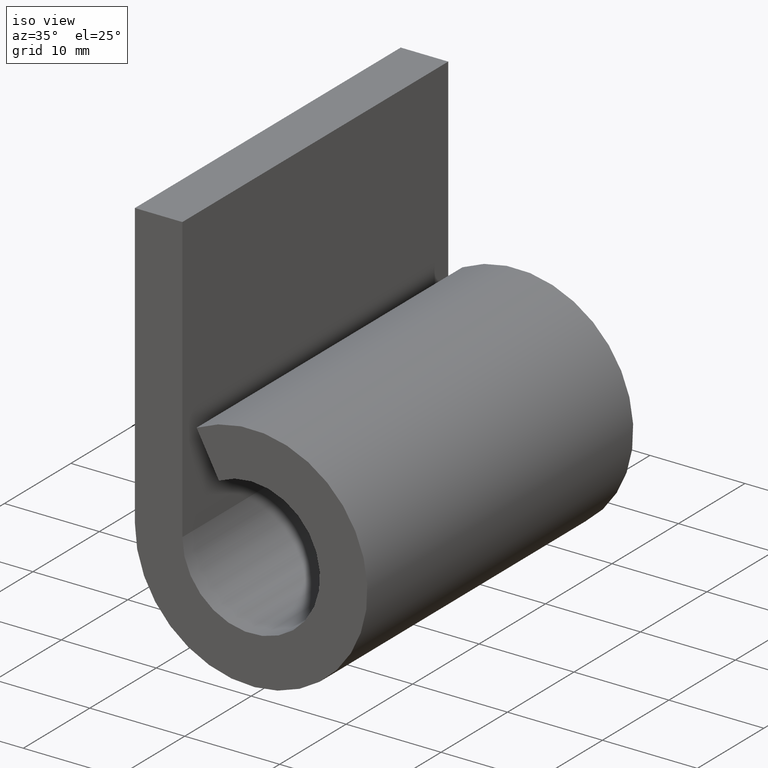
[diagram: clean part render]
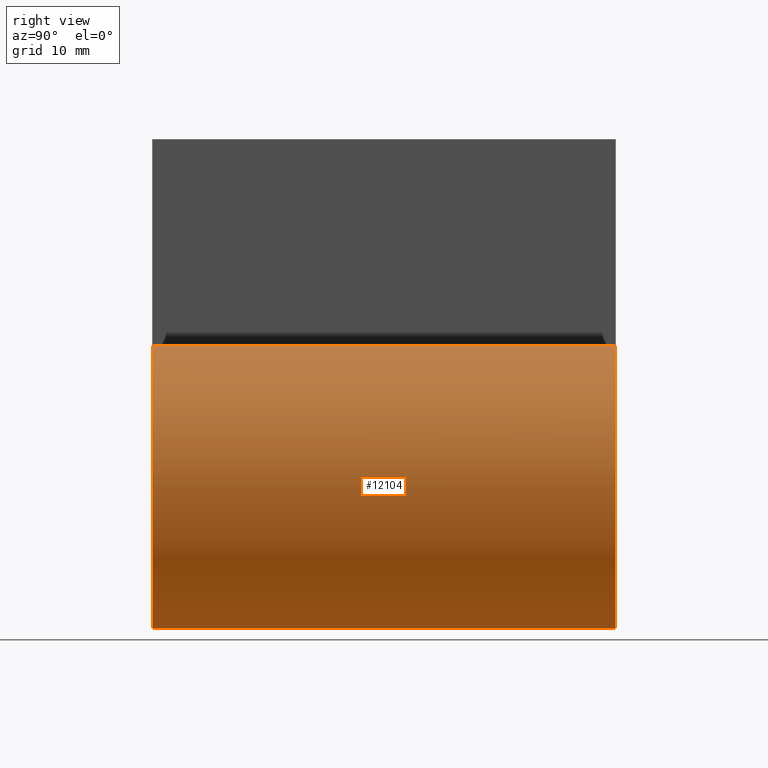
[diagram: tour spotlight — one face highlighted and labeled with its STEP entity id]
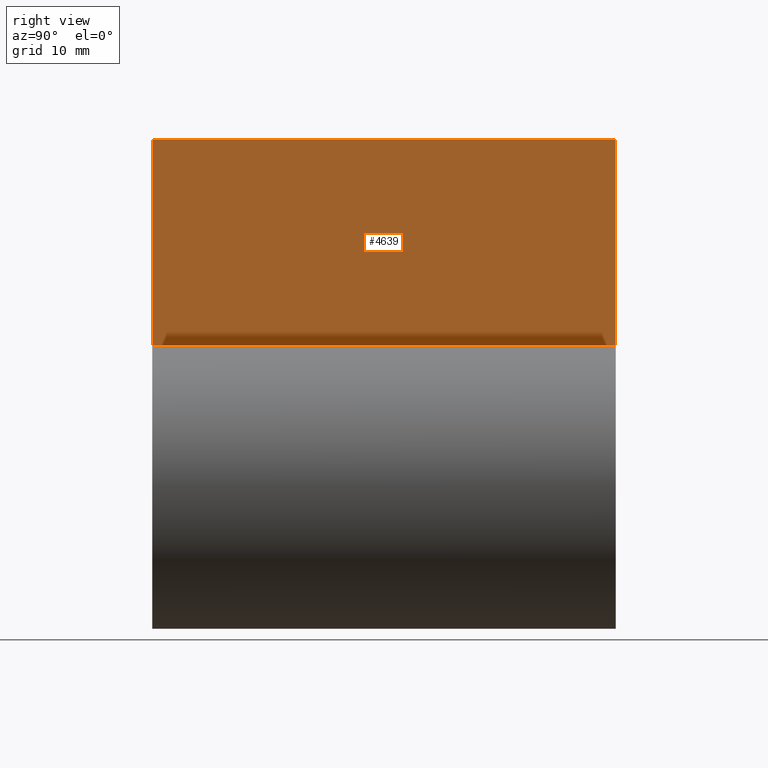
[diagram: tour spotlight — one face highlighted and labeled with its STEP entity id]
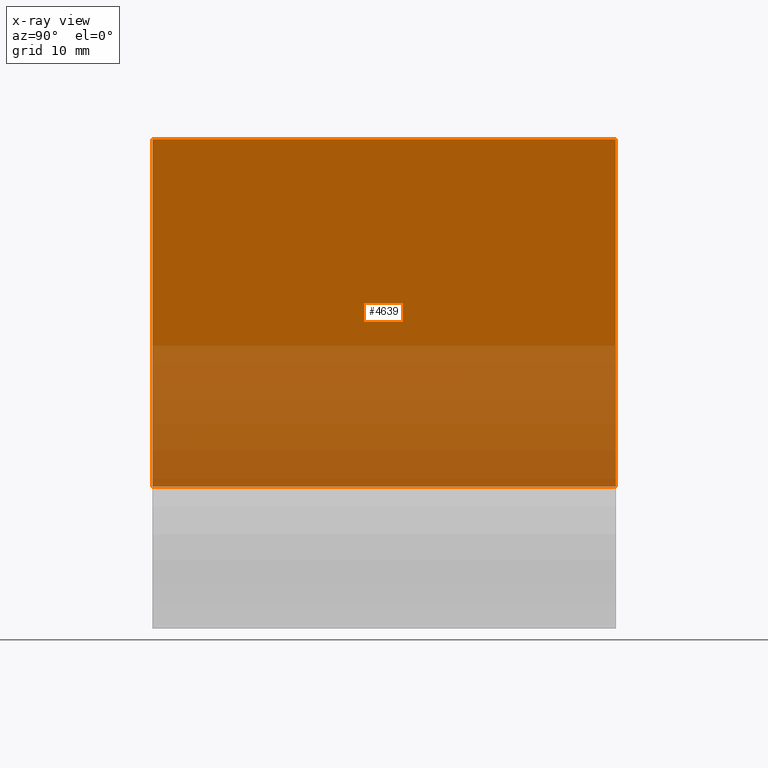
[diagram: x-ray of the same camera — body ghosted, this tour face saturated]
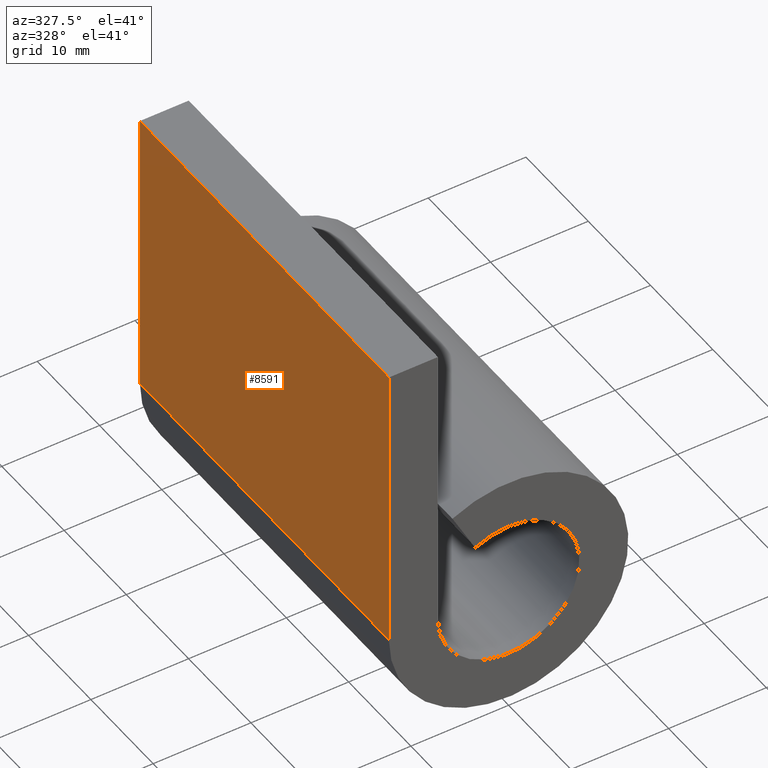
[diagram: tour spotlight — one face highlighted and labeled with its STEP entity id]
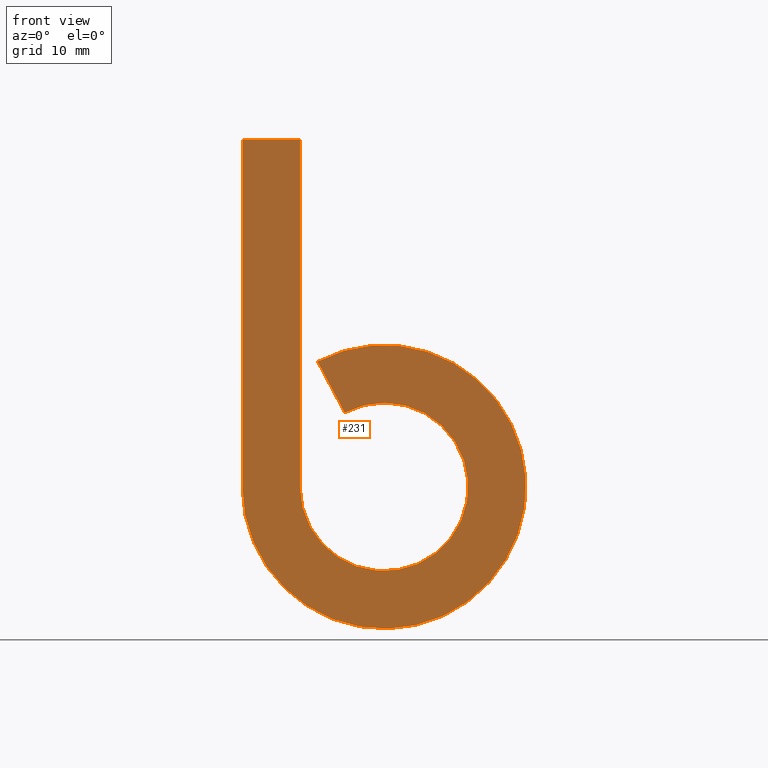
[diagram: tour spotlight — one face highlighted and labeled with its STEP entity id]
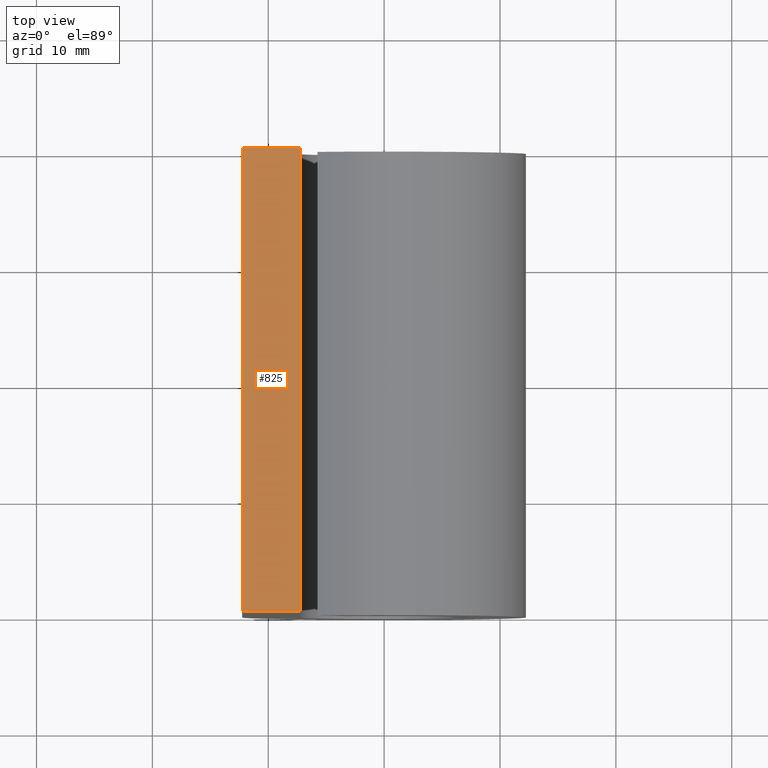
[diagram: tour spotlight — one face highlighted and labeled with its STEP entity id]
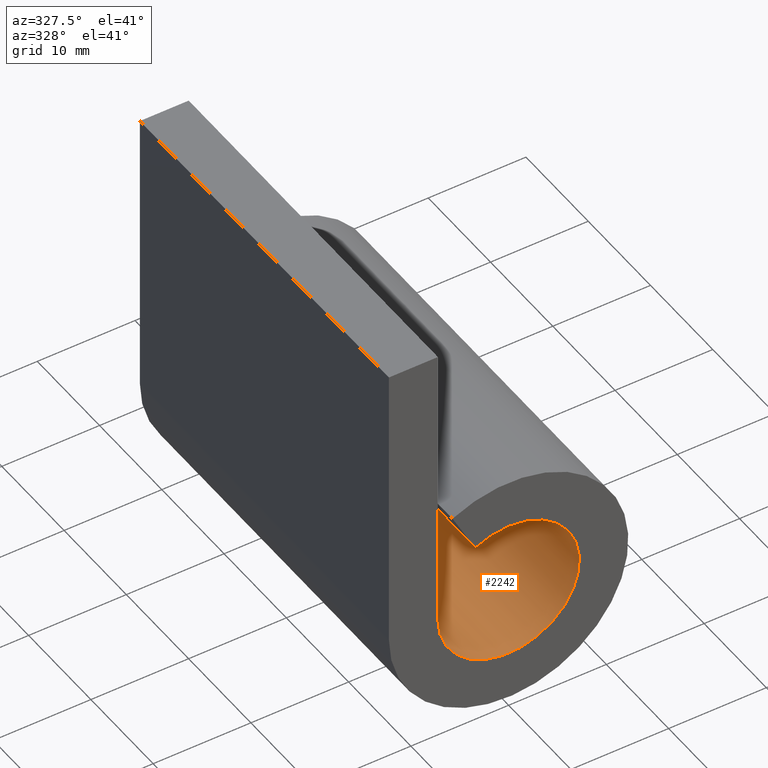
[diagram: tour spotlight — one face highlighted and labeled with its STEP entity id]
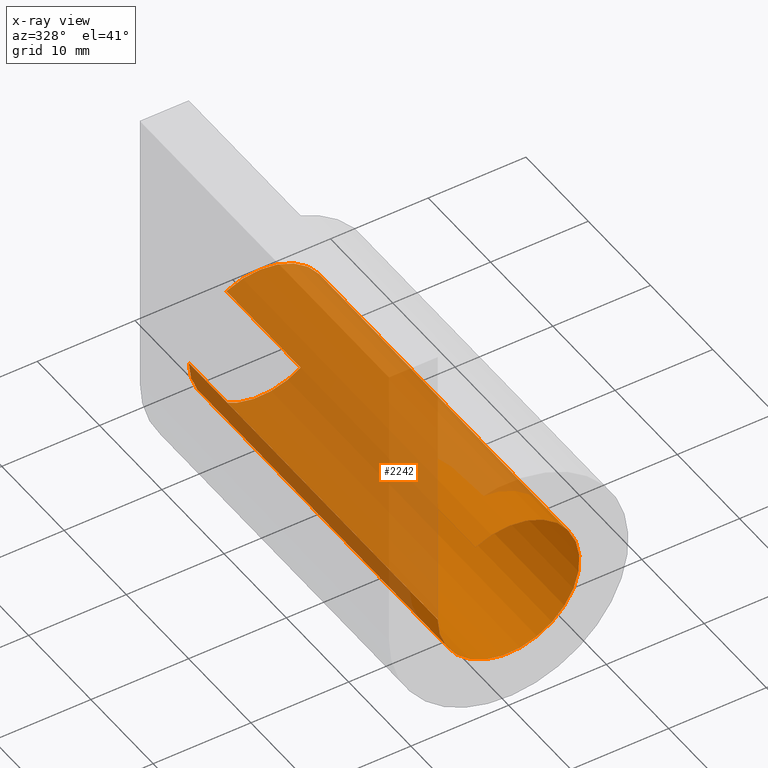
[diagram: x-ray of the same camera — body ghosted, this tour face saturated]
A machine part: a face-by-face anatomy tour. The part has 224 B-rep faces; the first image is the clean iso view, then the 6 largest visible faces are spotlighted one at a time (largest first), each with its STEP entity span.

Face 1 — right view, entity #12104. In plain terms, the highlighted cylindrical surface (partial cylindrical patch) has radius 12.25 mm, axis along (-0, -1, -0).
Definition (entity closure, byte-faithful):
#112 = FACE_OUTER_BOUND ( 'NONE', #10246, .T. ) ;
#849 = CARTESIAN_POINT ( 'NONE',  ( -12.24999999999999822, 20.00000000000000000, 2.250288493433262686E-15 ) ) ;
#1230 = DIRECTION ( 'NONE',  ( -0.000000000000000000, -1.000000000000000000, -0.000000000000000000 ) ) ;
#1529 = CARTESIAN_POINT ( 'NONE',  ( 8.673617379884035472E-15, -20.00000000000000000, 0.000000000000000000 ) ) ;
#1615 = DIRECTION ( 'NONE',  ( 0.000000000000000000, 0.000000000000000000, -1.000000000000000000 ) ) ;
#1683 = VECTOR ( 'NONE', #1230, 1000.000000000000000 ) ;
#2055 = CARTESIAN_POINT ( 'NONE',  ( -5.750000000000000888, 20.00000000000000000, 10.81665382639196871 ) ) ;
#2203 = CARTESIAN_POINT ( 'NONE',  ( -12.24999999999999822, 20.00000000000000000, 2.250288493433262686E-15 ) ) ;
#2627 = LINE ( 'NONE', #7241, #1683 ) ;
#2688 = CIRCLE ( 'NONE', #9768, 12.25000000000000711 ) ;
#3251 = EDGE_CURVE ( 'NONE', #12689, #11899, #2688, .T. ) ;
#3699 = ORIENTED_EDGE ( 'NONE', *, *, #8500, .F. ) ;
#3949 = DIRECTION ( 'NONE',  ( 0.000000000000000000, 1.000000000000000000, -0.000000000000000000 ) ) ;
#4511 = CYLINDRICAL_SURFACE ( 'NONE', #10065, 12.25000000000000711 ) ;
#5002 = CIRCLE ( 'NONE', #8547, 12.25000000000000711 ) ;
#5700 = CARTESIAN_POINT ( 'NONE',  ( 8.673617379884035472E-15, 20.00000000000000000, 0.000000000000000000 ) ) ;
#6585 = DIRECTION ( 'NONE',  ( 0.000000000000000000, 0.000000000000000000, -1.000000000000000000 ) ) ;
#6586 = ORIENTED_EDGE ( 'NONE', *, *, #3251, .T. ) ;
#6968 = DIRECTION ( 'NONE',  ( 0.000000000000000000, 0.000000000000000000, -1.000000000000000000 ) ) ;
#7241 = CARTESIAN_POINT ( 'NONE',  ( -5.750000000000000888, 20.00000000000000000, 10.81665382639196871 ) ) ;
#7653 = CARTESIAN_POINT ( 'NONE',  ( 8.673617379884035472E-15, 20.00000000000000000, 0.000000000000000000 ) ) ;
#7894 = DIRECTION ( 'NONE',  ( -0.000000000000000000, -1.000000000000000000, -0.000000000000000000 ) ) ;
#7962 = CARTESIAN_POINT ( 'NONE',  ( -12.24999999999999822, -20.00000000000000000, 2.250288493433262686E-15 ) ) ;
#8423 = VECTOR ( 'NONE', #7894, 1000.000000000000000 ) ;
#8500 = EDGE_CURVE ( 'NONE', #12383, #11899, #11563, .T. ) ;
#8547 = AXIS2_PLACEMENT_3D ( 'NONE', #7653, #9695, #1615 ) ;
#9528 = DIRECTION ( 'NONE',  ( -0.000000000000000000, -1.000000000000000000, -0.000000000000000000 ) ) ;
#9695 = DIRECTION ( 'NONE',  ( 0.000000000000000000, 1.000000000000000000, -0.000000000000000000 ) ) ;
#9768 = AXIS2_PLACEMENT_3D ( 'NONE', #1529, #3949, #6968 ) ;
#10050 = EDGE_CURVE ( 'NONE', #11219, #12383, #5002, .T. ) ;
#10065 = AXIS2_PLACEMENT_3D ( 'NONE', #5700, #9528, #6585 ) ;
#10246 = EDGE_LOOP ( 'NONE', ( #6586, #3699, #12229, #12254 ) ) ;
#10594 = CARTESIAN_POINT ( 'NONE',  ( -5.750000000000000888, -20.00000000000000000, 10.81665382639196871 ) ) ;
#11219 = VERTEX_POINT ( 'NONE', #2055 ) ;
#11563 = LINE ( 'NONE', #849, #8423 ) ;
#11899 = VERTEX_POINT ( 'NONE', #7962 ) ;
#12104 = ADVANCED_FACE ( 'NONE', ( #112 ), #4511, .T. ) ;
#12229 = ORIENTED_EDGE ( 'NONE', *, *, #10050, .F. ) ;
#12254 = ORIENTED_EDGE ( 'NONE', *, *, #12473, .T. ) ;
#12383 = VERTEX_POINT ( 'NONE', #2203 ) ;
#12473 = EDGE_CURVE ( 'NONE', #11219, #12689, #2627, .T. ) ;
#12689 = VERTEX_POINT ( 'NONE', #10594 ) ;

Face 2 — right view, entity #4639. An x-ray twin of the same camera follows (body ghosted, this face saturated) — the face is partly hidden behind the body. In plain terms, the highlighted planar face has unit normal (-1, 0, 0).
Definition (entity closure, byte-faithful):
#338 = ORIENTED_EDGE ( 'NONE', *, *, #1328, .T. ) ;
#353 = VERTEX_POINT ( 'NONE', #1194 ) ;
#447 = PLANE ( 'NONE',  #4796 ) ;
#956 = CARTESIAN_POINT ( 'NONE',  ( -7.250000000000000000, -20.00000000000000000, 0.000000000000000000 ) ) ;
#1187 = VERTEX_POINT ( 'NONE', #1626 ) ;
#1194 = CARTESIAN_POINT ( 'NONE',  ( -7.250000000000000000, 20.00000000000000000, 30.00000000000000000 ) ) ;
#1328 = EDGE_CURVE ( 'NONE', #353, #1187, #6162, .T. ) ;
#1626 = CARTESIAN_POINT ( 'NONE',  ( -7.250000000000000000, -20.00000000000000000, 30.00000000000000000 ) ) ;
#2245 = FACE_OUTER_BOUND ( 'NONE', #5813, .T. ) ;
#2280 = VECTOR ( 'NONE', #11999, 1000.000000000000000 ) ;
#2579 = LINE ( 'NONE', #7368, #9568 ) ;
#2605 = VERTEX_POINT ( 'NONE', #9033 ) ;
#2675 = LINE ( 'NONE', #12260, #3166 ) ;
#3166 = VECTOR ( 'NONE', #4285, 1000.000000000000000 ) ;
#3597 = DIRECTION ( 'NONE',  ( -0.000000000000000000, -1.000000000000000000, -0.000000000000000000 ) ) ;
#3777 = VECTOR ( 'NONE', #3597, 1000.000000000000000 ) ;
#4132 = EDGE_CURVE ( 'NONE', #2605, #9826, #11108, .T. ) ;
#4281 = ORIENTED_EDGE ( 'NONE', *, *, #5256, .F. ) ;
#4285 = DIRECTION ( 'NONE',  ( 0.000000000000000000, 0.000000000000000000, -1.000000000000000000 ) ) ;
#4484 = CARTESIAN_POINT ( 'NONE',  ( -7.250000000000000000, 20.00000000000000000, 30.00000000000000000 ) ) ;
#4639 = ADVANCED_FACE ( 'NONE', ( #2245 ), #447, .F. ) ;
#4796 = AXIS2_PLACEMENT_3D ( 'NONE', #4484, #12295, #7435 ) ;
#5256 = EDGE_CURVE ( 'NONE', #353, #2605, #2675, .T. ) ;
#5468 = ORIENTED_EDGE ( 'NONE', *, *, #8156, .T. ) ;
#5665 = CARTESIAN_POINT ( 'NONE',  ( -7.250000000000000000, 20.00000000000000000, 0.000000000000000000 ) ) ;
#5813 = EDGE_LOOP ( 'NONE', ( #5468, #7367, #4281, #338 ) ) ;
#6162 = LINE ( 'NONE', #10881, #2280 ) ;
#7367 = ORIENTED_EDGE ( 'NONE', *, *, #4132, .F. ) ;
#7368 = CARTESIAN_POINT ( 'NONE',  ( -7.250000000000000000, -20.00000000000000000, 30.00000000000000000 ) ) ;
#7435 = DIRECTION ( 'NONE',  ( 0.000000000000000000, 0.000000000000000000, 1.000000000000000000 ) ) ;
#8156 = EDGE_CURVE ( 'NONE', #1187, #9826, #2579, .T. ) ;
#8483 = DIRECTION ( 'NONE',  ( 0.000000000000000000, 0.000000000000000000, -1.000000000000000000 ) ) ;
#9033 = CARTESIAN_POINT ( 'NONE',  ( -7.250000000000000000, 20.00000000000000000, 0.000000000000000000 ) ) ;
#9568 = VECTOR ( 'NONE', #8483, 1000.000000000000000 ) ;
#9826 = VERTEX_POINT ( 'NONE', #956 ) ;
#10881 = CARTESIAN_POINT ( 'NONE',  ( -7.250000000000000000, 20.00000000000000000, 30.00000000000000000 ) ) ;
#11108 = LINE ( 'NONE', #5665, #3777 ) ;
#11999 = DIRECTION ( 'NONE',  ( -0.000000000000000000, -1.000000000000000000, -0.000000000000000000 ) ) ;
#12260 = CARTESIAN_POINT ( 'NONE',  ( -7.250000000000000000, 20.00000000000000000, 30.00000000000000000 ) ) ;
#12295 = DIRECTION ( 'NONE',  ( -1.000000000000000000, 0.000000000000000000, 0.000000000000000000 ) ) ;

Face 3 — auxiliary view, entity #8591. In plain terms, the highlighted planar face has unit normal (1, -0, 0).
Definition (entity closure, byte-faithful):
#321 = LINE ( 'NONE', #10991, #12506 ) ;
#357 = VERTEX_POINT ( 'NONE', #1282 ) ;
#849 = CARTESIAN_POINT ( 'NONE',  ( -12.24999999999999822, 20.00000000000000000, 2.250288493433262686E-15 ) ) ;
#1282 = CARTESIAN_POINT ( 'NONE',  ( -12.25000000000000000, -20.00000000000000000, 30.00000000000000000 ) ) ;
#1895 = AXIS2_PLACEMENT_3D ( 'NONE', #8339, #3371, #3289 ) ;
#2142 = EDGE_CURVE ( 'NONE', #11899, #357, #8924, .T. ) ;
#2203 = CARTESIAN_POINT ( 'NONE',  ( -12.24999999999999822, 20.00000000000000000, 2.250288493433262686E-15 ) ) ;
#2344 = ORIENTED_EDGE ( 'NONE', *, *, #12009, .F. ) ;
#3025 = ORIENTED_EDGE ( 'NONE', *, *, #6699, .F. ) ;
#3289 = DIRECTION ( 'NONE',  ( 0.000000000000000000, 0.000000000000000000, -1.000000000000000000 ) ) ;
#3371 = DIRECTION ( 'NONE',  ( 1.000000000000000000, -0.000000000000000000, 0.000000000000000000 ) ) ;
#3441 = ORIENTED_EDGE ( 'NONE', *, *, #8500, .T. ) ;
#4469 = CARTESIAN_POINT ( 'NONE',  ( -12.25000000000000000, 20.00000000000000000, 30.00000000000000000 ) ) ;
#4740 = VECTOR ( 'NONE', #12876, 1000.000000000000000 ) ;
#5831 = CARTESIAN_POINT ( 'NONE',  ( -12.25000000000000000, -20.00000000000000000, 30.00000000000000000 ) ) ;
#6197 = PLANE ( 'NONE',  #1895 ) ;
#6699 = EDGE_CURVE ( 'NONE', #8782, #357, #321, .T. ) ;
#7155 = VECTOR ( 'NONE', #11390, 1000.000000000000000 ) ;
#7191 = EDGE_LOOP ( 'NONE', ( #11572, #3025, #2344, #3441 ) ) ;
#7496 = FACE_OUTER_BOUND ( 'NONE', #7191, .T. ) ;
#7894 = DIRECTION ( 'NONE',  ( -0.000000000000000000, -1.000000000000000000, -0.000000000000000000 ) ) ;
#7962 = CARTESIAN_POINT ( 'NONE',  ( -12.24999999999999822, -20.00000000000000000, 2.250288493433262686E-15 ) ) ;
#8339 = CARTESIAN_POINT ( 'NONE',  ( -12.25000000000000000, 20.00000000000000000, 30.00000000000000000 ) ) ;
#8423 = VECTOR ( 'NONE', #7894, 1000.000000000000000 ) ;
#8500 = EDGE_CURVE ( 'NONE', #12383, #11899, #11563, .T. ) ;
#8591 = ADVANCED_FACE ( 'NONE', ( #7496 ), #6197, .F. ) ;
#8782 = VERTEX_POINT ( 'NONE', #11584 ) ;
#8924 = LINE ( 'NONE', #5831, #4740 ) ;
#9790 = DIRECTION ( 'NONE',  ( -0.000000000000000000, -1.000000000000000000, -0.000000000000000000 ) ) ;
#10991 = CARTESIAN_POINT ( 'NONE',  ( -12.25000000000000000, 20.00000000000000000, 30.00000000000000000 ) ) ;
#11377 = LINE ( 'NONE', #4469, #7155 ) ;
#11390 = DIRECTION ( 'NONE',  ( -0.000000000000000000, -0.000000000000000000, 1.000000000000000000 ) ) ;
#11563 = LINE ( 'NONE', #849, #8423 ) ;
#11572 = ORIENTED_EDGE ( 'NONE', *, *, #2142, .T. ) ;
#11584 = CARTESIAN_POINT ( 'NONE',  ( -12.25000000000000000, 20.00000000000000000, 30.00000000000000000 ) ) ;
#11899 = VERTEX_POINT ( 'NONE', #7962 ) ;
#12009 = EDGE_CURVE ( 'NONE', #12383, #8782, #11377, .T. ) ;
#12383 = VERTEX_POINT ( 'NONE', #2203 ) ;
#12506 = VECTOR ( 'NONE', #9790, 1000.000000000000000 ) ;
#12876 = DIRECTION ( 'NONE',  ( -0.000000000000000000, -0.000000000000000000, 1.000000000000000000 ) ) ;

Face 4 — front view, entity #231. In plain terms, the highlighted planar face has unit normal (0, -1, 0).
Definition (entity closure, byte-faithful):
#231 = ADVANCED_FACE ( 'NONE', ( #12318 ), #11855, .T. ) ;
#357 = VERTEX_POINT ( 'NONE', #1282 ) ;
#494 = ORIENTED_EDGE ( 'NONE', *, *, #9372, .F. ) ;
#956 = CARTESIAN_POINT ( 'NONE',  ( -7.250000000000000000, -20.00000000000000000, 0.000000000000000000 ) ) ;
#1187 = VERTEX_POINT ( 'NONE', #1626 ) ;
#1282 = CARTESIAN_POINT ( 'NONE',  ( -12.25000000000000000, -20.00000000000000000, 30.00000000000000000 ) ) ;
#1529 = CARTESIAN_POINT ( 'NONE',  ( 8.673617379884035472E-15, -20.00000000000000000, 0.000000000000000000 ) ) ;
#1626 = CARTESIAN_POINT ( 'NONE',  ( -7.250000000000000000, -20.00000000000000000, 30.00000000000000000 ) ) ;
#1931 = DIRECTION ( 'NONE',  ( -0.4693877551020408379, -0.000000000000000000, 0.8829921490932218786 ) ) ;
#2034 = AXIS2_PLACEMENT_3D ( 'NONE', #6930, #4975, #5868 ) ;
#2043 = VECTOR ( 'NONE', #6777, 1000.000000000000000 ) ;
#2142 = EDGE_CURVE ( 'NONE', #11899, #357, #8924, .T. ) ;
#2579 = LINE ( 'NONE', #7368, #9568 ) ;
#2688 = CIRCLE ( 'NONE', #9768, 12.25000000000000711 ) ;
#3251 = EDGE_CURVE ( 'NONE', #12689, #11899, #2688, .T. ) ;
#3739 = EDGE_CURVE ( 'NONE', #9826, #12302, #5198, .T. ) ;
#3949 = DIRECTION ( 'NONE',  ( 0.000000000000000000, 1.000000000000000000, -0.000000000000000000 ) ) ;
#4630 = AXIS2_PLACEMENT_3D ( 'NONE', #11249, #7281, #6332 ) ;
#4740 = VECTOR ( 'NONE', #12876, 1000.000000000000000 ) ;
#4975 = DIRECTION ( 'NONE',  ( 0.000000000000000000, -1.000000000000000000, 0.000000000000000000 ) ) ;
#5198 = CIRCLE ( 'NONE', #4630, 7.250000000000007105 ) ;
#5723 = CARTESIAN_POINT ( 'NONE',  ( -12.25000000000000000, -20.00000000000000000, 30.00000000000000000 ) ) ;
#5831 = CARTESIAN_POINT ( 'NONE',  ( -12.25000000000000000, -20.00000000000000000, 30.00000000000000000 ) ) ;
#5868 = DIRECTION ( 'NONE',  ( 0.000000000000000000, -0.000000000000000000, -1.000000000000000000 ) ) ;
#6332 = DIRECTION ( 'NONE',  ( 0.000000000000000000, 0.000000000000000000, -1.000000000000000000 ) ) ;
#6449 = ORIENTED_EDGE ( 'NONE', *, *, #2142, .F. ) ;
#6777 = DIRECTION ( 'NONE',  ( 1.000000000000000000, 0.000000000000000000, 0.000000000000000000 ) ) ;
#6930 = CARTESIAN_POINT ( 'NONE',  ( 8.673617379884035472E-15, -20.00000000000000000, 0.000000000000000000 ) ) ;
#6968 = DIRECTION ( 'NONE',  ( 0.000000000000000000, 0.000000000000000000, -1.000000000000000000 ) ) ;
#7056 = CARTESIAN_POINT ( 'NONE',  ( -3.403061224489794423, -20.00000000000000000, 6.401693080925862311 ) ) ;
#7281 = DIRECTION ( 'NONE',  ( -0.000000000000000000, -1.000000000000000000, 0.000000000000000000 ) ) ;
#7368 = CARTESIAN_POINT ( 'NONE',  ( -7.250000000000000000, -20.00000000000000000, 30.00000000000000000 ) ) ;
#7481 = LINE ( 'NONE', #5723, #2043 ) ;
#7759 = EDGE_LOOP ( 'NONE', ( #494, #6449, #7796, #12531, #11566, #8492 ) ) ;
#7796 = ORIENTED_EDGE ( 'NONE', *, *, #3251, .F. ) ;
#7962 = CARTESIAN_POINT ( 'NONE',  ( -12.24999999999999822, -20.00000000000000000, 2.250288493433262686E-15 ) ) ;
#8029 = EDGE_CURVE ( 'NONE', #12302, #12689, #8141, .T. ) ;
#8141 = LINE ( 'NONE', #12877, #9836 ) ;
#8156 = EDGE_CURVE ( 'NONE', #1187, #9826, #2579, .T. ) ;
#8483 = DIRECTION ( 'NONE',  ( 0.000000000000000000, 0.000000000000000000, -1.000000000000000000 ) ) ;
#8492 = ORIENTED_EDGE ( 'NONE', *, *, #8156, .F. ) ;
#8924 = LINE ( 'NONE', #5831, #4740 ) ;
#9372 = EDGE_CURVE ( 'NONE', #357, #1187, #7481, .T. ) ;
#9568 = VECTOR ( 'NONE', #8483, 1000.000000000000000 ) ;
#9768 = AXIS2_PLACEMENT_3D ( 'NONE', #1529, #3949, #6968 ) ;
#9826 = VERTEX_POINT ( 'NONE', #956 ) ;
#9836 = VECTOR ( 'NONE', #1931, 1000.000000000000114 ) ;
#10594 = CARTESIAN_POINT ( 'NONE',  ( -5.750000000000000888, -20.00000000000000000, 10.81665382639196871 ) ) ;
#11249 = CARTESIAN_POINT ( 'NONE',  ( 8.673617379884035472E-15, -20.00000000000000000, 0.000000000000000000 ) ) ;
#11566 = ORIENTED_EDGE ( 'NONE', *, *, #3739, .F. ) ;
#11855 = PLANE ( 'NONE',  #2034 ) ;
#11899 = VERTEX_POINT ( 'NONE', #7962 ) ;
#12302 = VERTEX_POINT ( 'NONE', #7056 ) ;
#12318 = FACE_OUTER_BOUND ( 'NONE', #7759, .T. ) ;
#12531 = ORIENTED_EDGE ( 'NONE', *, *, #8029, .F. ) ;
#12689 = VERTEX_POINT ( 'NONE', #10594 ) ;
#12876 = DIRECTION ( 'NONE',  ( -0.000000000000000000, -0.000000000000000000, 1.000000000000000000 ) ) ;
#12877 = CARTESIAN_POINT ( 'NONE',  ( -5.750000000000000888, -20.00000000000000000, 10.81665382639196871 ) ) ;

Face 5 — top view, entity #825. In plain terms, the highlighted planar face has unit normal (0, 0, -1).
Definition (entity closure, byte-faithful):
#183 = ORIENTED_EDGE ( 'NONE', *, *, #6699, .T. ) ;
#321 = LINE ( 'NONE', #10991, #12506 ) ;
#353 = VERTEX_POINT ( 'NONE', #1194 ) ;
#357 = VERTEX_POINT ( 'NONE', #1282 ) ;
#825 = ADVANCED_FACE ( 'NONE', ( #7405 ), #7395, .F. ) ;
#1187 = VERTEX_POINT ( 'NONE', #1626 ) ;
#1194 = CARTESIAN_POINT ( 'NONE',  ( -7.250000000000000000, 20.00000000000000000, 30.00000000000000000 ) ) ;
#1279 = LINE ( 'NONE', #4788, #1578 ) ;
#1282 = CARTESIAN_POINT ( 'NONE',  ( -12.25000000000000000, -20.00000000000000000, 30.00000000000000000 ) ) ;
#1328 = EDGE_CURVE ( 'NONE', #353, #1187, #6162, .T. ) ;
#1578 = VECTOR ( 'NONE', #1955, 1000.000000000000000 ) ;
#1626 = CARTESIAN_POINT ( 'NONE',  ( -7.250000000000000000, -20.00000000000000000, 30.00000000000000000 ) ) ;
#1955 = DIRECTION ( 'NONE',  ( 1.000000000000000000, 0.000000000000000000, 0.000000000000000000 ) ) ;
#2043 = VECTOR ( 'NONE', #6777, 1000.000000000000000 ) ;
#2280 = VECTOR ( 'NONE', #11999, 1000.000000000000000 ) ;
#3231 = AXIS2_PLACEMENT_3D ( 'NONE', #9384, #8461, #3444 ) ;
#3444 = DIRECTION ( 'NONE',  ( -1.000000000000000000, 0.000000000000000000, -0.000000000000000000 ) ) ;
#4788 = CARTESIAN_POINT ( 'NONE',  ( -12.25000000000000000, 20.00000000000000000, 30.00000000000000000 ) ) ;
#5723 = CARTESIAN_POINT ( 'NONE',  ( -12.25000000000000000, -20.00000000000000000, 30.00000000000000000 ) ) ;
#6162 = LINE ( 'NONE', #10881, #2280 ) ;
#6699 = EDGE_CURVE ( 'NONE', #8782, #357, #321, .T. ) ;
#6756 = EDGE_LOOP ( 'NONE', ( #9517, #9737, #7576, #183 ) ) ;
#6777 = DIRECTION ( 'NONE',  ( 1.000000000000000000, 0.000000000000000000, 0.000000000000000000 ) ) ;
#7395 = PLANE ( 'NONE',  #3231 ) ;
#7405 = FACE_OUTER_BOUND ( 'NONE', #6756, .T. ) ;
#7481 = LINE ( 'NONE', #5723, #2043 ) ;
#7576 = ORIENTED_EDGE ( 'NONE', *, *, #8366, .F. ) ;
#8366 = EDGE_CURVE ( 'NONE', #8782, #353, #1279, .T. ) ;
#8461 = DIRECTION ( 'NONE',  ( 0.000000000000000000, 0.000000000000000000, -1.000000000000000000 ) ) ;
#8782 = VERTEX_POINT ( 'NONE', #11584 ) ;
#9372 = EDGE_CURVE ( 'NONE', #357, #1187, #7481, .T. ) ;
#9384 = CARTESIAN_POINT ( 'NONE',  ( -12.25000000000000000, 20.00000000000000000, 30.00000000000000000 ) ) ;
#9517 = ORIENTED_EDGE ( 'NONE', *, *, #9372, .T. ) ;
#9737 = ORIENTED_EDGE ( 'NONE', *, *, #1328, .F. ) ;
#9790 = DIRECTION ( 'NONE',  ( -0.000000000000000000, -1.000000000000000000, -0.000000000000000000 ) ) ;
#10881 = CARTESIAN_POINT ( 'NONE',  ( -7.250000000000000000, 20.00000000000000000, 30.00000000000000000 ) ) ;
#10991 = CARTESIAN_POINT ( 'NONE',  ( -12.25000000000000000, 20.00000000000000000, 30.00000000000000000 ) ) ;
#11584 = CARTESIAN_POINT ( 'NONE',  ( -12.25000000000000000, 20.00000000000000000, 30.00000000000000000 ) ) ;
#11999 = DIRECTION ( 'NONE',  ( -0.000000000000000000, -1.000000000000000000, -0.000000000000000000 ) ) ;
#12506 = VECTOR ( 'NONE', #9790, 1000.000000000000000 ) ;

Face 6 — auxiliary view, entity #2242. An x-ray twin of the same camera follows (body ghosted, this face saturated) — the face is partly hidden behind the body. In plain terms, the highlighted cylindrical surface (partial cylindrical patch) has radius 7.25 mm, axis along (-0, -1, -0).
Definition (entity closure, byte-faithful):
#551 = DIRECTION ( 'NONE',  ( 0.000000000000000000, 0.000000000000000000, -1.000000000000000000 ) ) ;
#956 = CARTESIAN_POINT ( 'NONE',  ( -7.250000000000000000, -20.00000000000000000, 0.000000000000000000 ) ) ;
#1952 = VERTEX_POINT ( 'NONE', #9507 ) ;
#2236 = AXIS2_PLACEMENT_3D ( 'NONE', #8094, #10144, #2262 ) ;
#2242 = ADVANCED_FACE ( 'NONE', ( #3047 ), #10485, .F. ) ;
#2262 = DIRECTION ( 'NONE',  ( 0.000000000000000000, 0.000000000000000000, -1.000000000000000000 ) ) ;
#2500 = CARTESIAN_POINT ( 'NONE',  ( 8.673617379884035472E-15, 20.00000000000000000, 0.000000000000000000 ) ) ;
#2548 = EDGE_LOOP ( 'NONE', ( #11802, #8063, #7775, #12777 ) ) ;
#2605 = VERTEX_POINT ( 'NONE', #9033 ) ;
#3047 = FACE_OUTER_BOUND ( 'NONE', #2548, .T. ) ;
#3597 = DIRECTION ( 'NONE',  ( -0.000000000000000000, -1.000000000000000000, -0.000000000000000000 ) ) ;
#3739 = EDGE_CURVE ( 'NONE', #9826, #12302, #5198, .T. ) ;
#3777 = VECTOR ( 'NONE', #3597, 1000.000000000000000 ) ;
#4132 = EDGE_CURVE ( 'NONE', #2605, #9826, #11108, .T. ) ;
#4630 = AXIS2_PLACEMENT_3D ( 'NONE', #11249, #7281, #6332 ) ;
#4663 = CARTESIAN_POINT ( 'NONE',  ( -3.403061224489794423, 20.00000000000000000, 6.401693080925862311 ) ) ;
#4969 = AXIS2_PLACEMENT_3D ( 'NONE', #2500, #12565, #551 ) ;
#5036 = EDGE_CURVE ( 'NONE', #2605, #1952, #10448, .T. ) ;
#5198 = CIRCLE ( 'NONE', #4630, 7.250000000000007105 ) ;
#5665 = CARTESIAN_POINT ( 'NONE',  ( -7.250000000000000000, 20.00000000000000000, 0.000000000000000000 ) ) ;
#6332 = DIRECTION ( 'NONE',  ( 0.000000000000000000, 0.000000000000000000, -1.000000000000000000 ) ) ;
#7056 = CARTESIAN_POINT ( 'NONE',  ( -3.403061224489794423, -20.00000000000000000, 6.401693080925862311 ) ) ;
#7281 = DIRECTION ( 'NONE',  ( -0.000000000000000000, -1.000000000000000000, 0.000000000000000000 ) ) ;
#7775 = ORIENTED_EDGE ( 'NONE', *, *, #5036, .F. ) ;
#8063 = ORIENTED_EDGE ( 'NONE', *, *, #8307, .F. ) ;
#8068 = VECTOR ( 'NONE', #9691, 1000.000000000000000 ) ;
#8094 = CARTESIAN_POINT ( 'NONE',  ( 8.673617379884035472E-15, 20.00000000000000000, 0.000000000000000000 ) ) ;
#8307 = EDGE_CURVE ( 'NONE', #1952, #12302, #10910, .T. ) ;
#9033 = CARTESIAN_POINT ( 'NONE',  ( -7.250000000000000000, 20.00000000000000000, 0.000000000000000000 ) ) ;
#9507 = CARTESIAN_POINT ( 'NONE',  ( -3.403061224489794423, 20.00000000000000000, 6.401693080925862311 ) ) ;
#9691 = DIRECTION ( 'NONE',  ( -0.000000000000000000, -1.000000000000000000, -0.000000000000000000 ) ) ;
#9826 = VERTEX_POINT ( 'NONE', #956 ) ;
#10144 = DIRECTION ( 'NONE',  ( -0.000000000000000000, -1.000000000000000000, -0.000000000000000000 ) ) ;
#10448 = CIRCLE ( 'NONE', #4969, 7.250000000000007105 ) ;
#10485 = CYLINDRICAL_SURFACE ( 'NONE', #2236, 7.250000000000007105 ) ;
#10910 = LINE ( 'NONE', #4663, #8068 ) ;
#11108 = LINE ( 'NONE', #5665, #3777 ) ;
#11249 = CARTESIAN_POINT ( 'NONE',  ( 8.673617379884035472E-15, -20.00000000000000000, 0.000000000000000000 ) ) ;
#11802 = ORIENTED_EDGE ( 'NONE', *, *, #3739, .T. ) ;
#12302 = VERTEX_POINT ( 'NONE', #7056 ) ;
#12565 = DIRECTION ( 'NONE',  ( -0.000000000000000000, -1.000000000000000000, 0.000000000000000000 ) ) ;
#12777 = ORIENTED_EDGE ( 'NONE', *, *, #4132, .T. ) ;